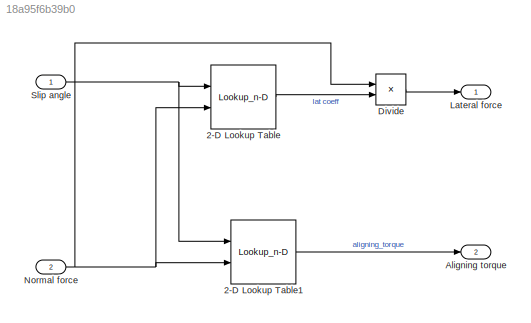
MODEL slx_18a95f6b39b0
KIND model
CONFIG AbsTol = auto
CONFIG EnableMultiTasking = off
CONFIG FixedStep = auto
CONFIG MaxStep = auto
CONFIG MinStep = auto
CONFIG RelTol = 1e-3
CONFIG SampleTimeConstraint = Unconstrained
CONFIG SolverName = VariableStepAuto
CONFIG StartTime = 0.0
CONFIG StopTime = 10.0
WORKSPACE source: mxarray member
WORKSPACE params: object (value not decoded)
BLOCK [Lookup_n-D] 2-D Lookup Table
  BreakpointsForDimension1 = params.s_sa_breakpoints.vals
  BreakpointsForDimension2 = params.s_load_breakpoints.vals
  InputPortMap = u0,u1
  InternalRulePriority = Speed
  Ports = [2, 1]
  RndMeth = Simplest
  Table = params.s_lateral_coeff_data.vals
BLOCK [Lookup_n-D] 2-D Lookup Table1
  BreakpointsForDimension1 = params.s_sa_breakpoints.vals
  BreakpointsForDimension2 = params.s_load_breakpoints.vals
  InputPortMap = u0,u1
  InternalRulePriority = Speed
  Ports = [2, 1]
  RndMeth = Simplest
  Table = params.s_aligning_torque_data.vals
BLOCK [Outport] Aligning torque
  Port = 2
BLOCK [Product] Divide
  Inputs = **
  Ports = [2, 1]
BLOCK [Outport] Lateral force
BLOCK [Inport] Normal force
  Port = 2
BLOCK [Inport] Slip angle
LINE 2-D Lookup Table1:1 -> Aligning torque:1
LINE 2-D Lookup Table:1 -> Divide:2
LINE Divide:1 -> Lateral force:1
NET Normal force:1 -> 2-D Lookup Table1:2, 2-D Lookup Table:2, Divide:1
NET Slip angle:1 -> 2-D Lookup Table1:1, 2-D Lookup Table:1
note: NET lines group one-source signal fan-out (src -> all destinations, sorted); 1:1 wires keep LINE
